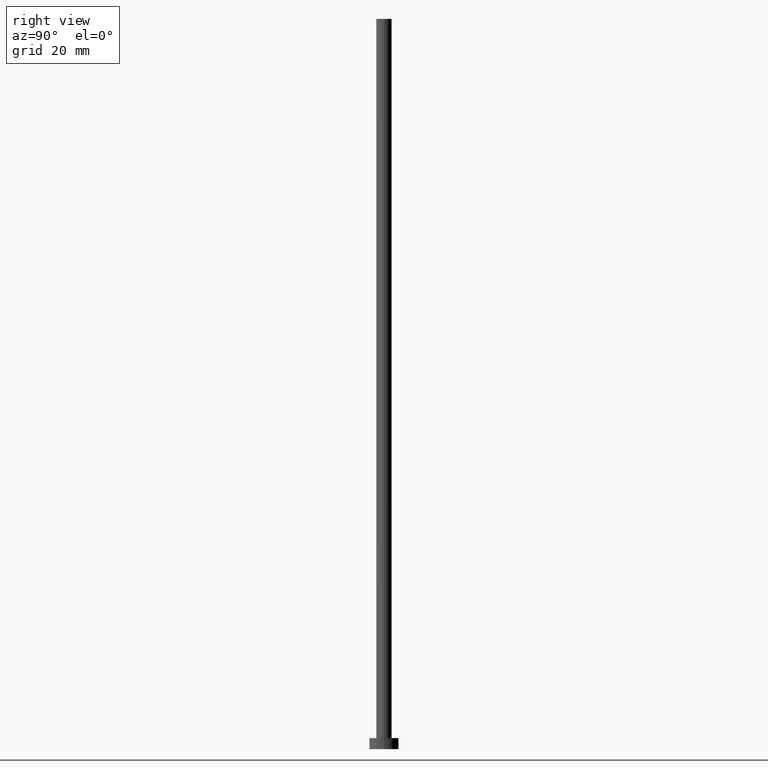
[diagram: clean part render]
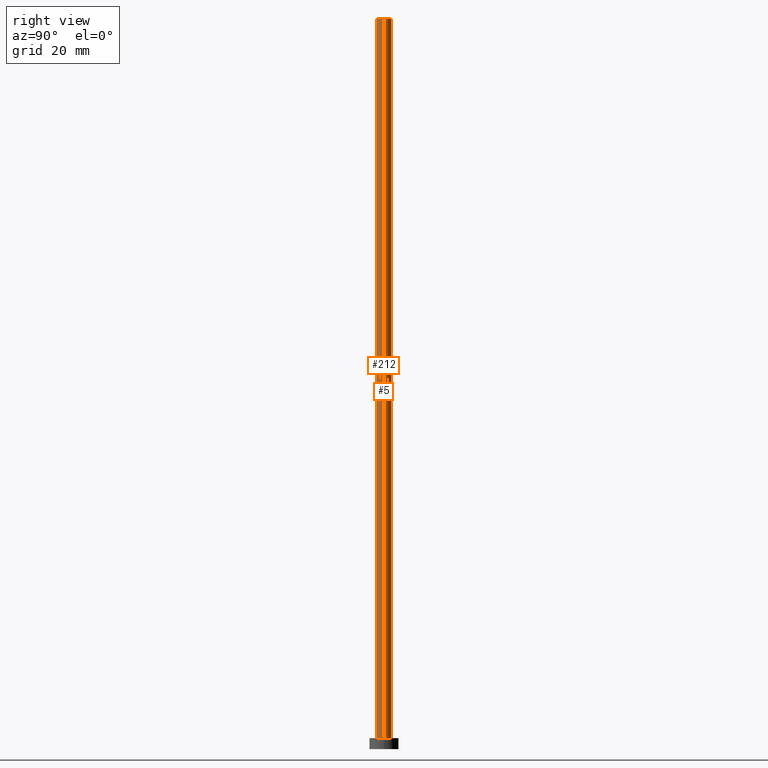
[diagram: same view with one multi-face feature highlighted, each face labeled with its STEP entity id]
A machine part, right view. The highlighted faces form ONE feature: a constant-radius fillet chain: 2 tangent blend faces with common blend radius 2.1 mm. The faces share edges in the B-rep.
Their STEP definitions:
[1] entity #5 (Cylinder):
#5 = ADVANCED_FACE ( 'NONE', ( #133 ), #61, .T. ) ;
#8 = DIRECTION ( 'NONE',  ( 0.000000000000000000, 0.000000000000000000, 1.000000000000000000 ) ) ;
#14 = EDGE_CURVE ( 'NONE', #70, #210, #127, .T. ) ;
#15 = AXIS2_PLACEMENT_3D ( 'NONE', #16, #176, #145 ) ;
#16 = CARTESIAN_POINT ( 'NONE',  ( 0.000000000000000000, 0.000000000000000000, 200.0000000000000000 ) ) ;
#20 = DIRECTION ( 'NONE',  ( -0.000000000000000000, -0.000000000000000000, -1.000000000000000000 ) ) ;
#23 = CARTESIAN_POINT ( 'NONE',  ( 2.100000000000000089, 2.571758278209441957E-16, 3.000000000000000000 ) ) ;
#25 = DIRECTION ( 'NONE',  ( -0.000000000000000000, -0.000000000000000000, -1.000000000000000000 ) ) ;
#26 = VECTOR ( 'NONE', #25, 1000.000000000000000 ) ;
#40 = ORIENTED_EDGE ( 'NONE', *, *, #95, .T. ) ;
#61 = CYLINDRICAL_SURFACE ( 'NONE', #203, 2.100000000000000089 ) ;
#63 = VERTEX_POINT ( 'NONE', #23 ) ;
#68 = LINE ( 'NONE', #234, #26 ) ;
#70 = VERTEX_POINT ( 'NONE', #91 ) ;
#84 = CARTESIAN_POINT ( 'NONE',  ( -2.100000000000000089, 0.000000000000000000, 200.0000000000000000 ) ) ;
#91 = CARTESIAN_POINT ( 'NONE',  ( 2.100000000000000089, 2.571758278209441957E-16, 200.0000000000000000 ) ) ;
#95 = EDGE_CURVE ( 'NONE', #70, #63, #68, .T. ) ;
#99 = EDGE_CURVE ( 'NONE', #63, #214, #173, .T. ) ;
#103 = CARTESIAN_POINT ( 'NONE',  ( 0.000000000000000000, 0.000000000000000000, 200.0000000000000000 ) ) ;
#117 = LINE ( 'NONE', #252, #215 ) ;
#119 = ORIENTED_EDGE ( 'NONE', *, *, #220, .F. ) ;
#127 = CIRCLE ( 'NONE', #15, 2.100000000000000089 ) ;
#133 = FACE_OUTER_BOUND ( 'NONE', #188, .T. ) ;
#134 = CARTESIAN_POINT ( 'NONE',  ( -2.100000000000000089, 0.000000000000000000, 3.000000000000000000 ) ) ;
#136 = AXIS2_PLACEMENT_3D ( 'NONE', #148, #8, #223 ) ;
#141 = ORIENTED_EDGE ( 'NONE', *, *, #14, .F. ) ;
#145 = DIRECTION ( 'NONE',  ( 1.000000000000000000, 0.000000000000000000, 0.000000000000000000 ) ) ;
#148 = CARTESIAN_POINT ( 'NONE',  ( 0.000000000000000000, 0.000000000000000000, 3.000000000000000000 ) ) ;
#151 = ORIENTED_EDGE ( 'NONE', *, *, #99, .T. ) ;
#173 = CIRCLE ( 'NONE', #136, 2.100000000000000089 ) ;
#176 = DIRECTION ( 'NONE',  ( 0.000000000000000000, 0.000000000000000000, 1.000000000000000000 ) ) ;
#178 = DIRECTION ( 'NONE',  ( -0.000000000000000000, -0.000000000000000000, -1.000000000000000000 ) ) ;
#188 = EDGE_LOOP ( 'NONE', ( #141, #40, #151, #119 ) ) ;
#202 = DIRECTION ( 'NONE',  ( -1.000000000000000000, 0.000000000000000000, 0.000000000000000000 ) ) ;
#203 = AXIS2_PLACEMENT_3D ( 'NONE', #103, #178, #202 ) ;
#210 = VERTEX_POINT ( 'NONE', #84 ) ;
#214 = VERTEX_POINT ( 'NONE', #134 ) ;
#215 = VECTOR ( 'NONE', #20, 1000.000000000000000 ) ;
#220 = EDGE_CURVE ( 'NONE', #210, #214, #117, .T. ) ;
#223 = DIRECTION ( 'NONE',  ( 1.000000000000000000, 0.000000000000000000, 0.000000000000000000 ) ) ;
#234 = CARTESIAN_POINT ( 'NONE',  ( 2.100000000000000089, 2.571758278209441957E-16, 200.0000000000000000 ) ) ;
#252 = CARTESIAN_POINT ( 'NONE',  ( -2.100000000000000089, 0.000000000000000000, 200.0000000000000000 ) ) ;
[2] entity #212 (Cylinder):
#9 = CARTESIAN_POINT ( 'NONE',  ( 0.000000000000000000, 0.000000000000000000, 200.0000000000000000 ) ) ;
#20 = DIRECTION ( 'NONE',  ( -0.000000000000000000, -0.000000000000000000, -1.000000000000000000 ) ) ;
#23 = CARTESIAN_POINT ( 'NONE',  ( 2.100000000000000089, 2.571758278209441957E-16, 3.000000000000000000 ) ) ;
#25 = DIRECTION ( 'NONE',  ( -0.000000000000000000, -0.000000000000000000, -1.000000000000000000 ) ) ;
#26 = VECTOR ( 'NONE', #25, 1000.000000000000000 ) ;
#35 = EDGE_CURVE ( 'NONE', #210, #70, #85, .T. ) ;
#37 = DIRECTION ( 'NONE',  ( 1.000000000000000000, 0.000000000000000000, 0.000000000000000000 ) ) ;
#56 = EDGE_CURVE ( 'NONE', #214, #63, #62, .T. ) ;
#62 = CIRCLE ( 'NONE', #94, 2.100000000000000089 ) ;
#63 = VERTEX_POINT ( 'NONE', #23 ) ;
#68 = LINE ( 'NONE', #234, #26 ) ;
#70 = VERTEX_POINT ( 'NONE', #91 ) ;
#71 = ORIENTED_EDGE ( 'NONE', *, *, #220, .T. ) ;
#82 = AXIS2_PLACEMENT_3D ( 'NONE', #90, #255, #189 ) ;
#84 = CARTESIAN_POINT ( 'NONE',  ( -2.100000000000000089, 0.000000000000000000, 200.0000000000000000 ) ) ;
#85 = CIRCLE ( 'NONE', #217, 2.100000000000000089 ) ;
#89 = CARTESIAN_POINT ( 'NONE',  ( 0.000000000000000000, 0.000000000000000000, 3.000000000000000000 ) ) ;
#90 = CARTESIAN_POINT ( 'NONE',  ( 0.000000000000000000, 0.000000000000000000, 200.0000000000000000 ) ) ;
#91 = CARTESIAN_POINT ( 'NONE',  ( 2.100000000000000089, 2.571758278209441957E-16, 200.0000000000000000 ) ) ;
#94 = AXIS2_PLACEMENT_3D ( 'NONE', #89, #149, #37 ) ;
#95 = EDGE_CURVE ( 'NONE', #70, #63, #68, .T. ) ;
#110 = ORIENTED_EDGE ( 'NONE', *, *, #35, .F. ) ;
#117 = LINE ( 'NONE', #252, #215 ) ;
#134 = CARTESIAN_POINT ( 'NONE',  ( -2.100000000000000089, 0.000000000000000000, 3.000000000000000000 ) ) ;
#143 = DIRECTION ( 'NONE',  ( 1.000000000000000000, 0.000000000000000000, 0.000000000000000000 ) ) ;
#149 = DIRECTION ( 'NONE',  ( 0.000000000000000000, 0.000000000000000000, 1.000000000000000000 ) ) ;
#150 = FACE_OUTER_BOUND ( 'NONE', #205, .T. ) ;
#157 = DIRECTION ( 'NONE',  ( 0.000000000000000000, 0.000000000000000000, 1.000000000000000000 ) ) ;
#180 = ORIENTED_EDGE ( 'NONE', *, *, #95, .F. ) ;
#189 = DIRECTION ( 'NONE',  ( -1.000000000000000000, 0.000000000000000000, 0.000000000000000000 ) ) ;
#205 = EDGE_LOOP ( 'NONE', ( #180, #110, #71, #237 ) ) ;
#210 = VERTEX_POINT ( 'NONE', #84 ) ;
#212 = ADVANCED_FACE ( 'NONE', ( #150 ), #231, .T. ) ;
#214 = VERTEX_POINT ( 'NONE', #134 ) ;
#215 = VECTOR ( 'NONE', #20, 1000.000000000000000 ) ;
#217 = AXIS2_PLACEMENT_3D ( 'NONE', #9, #157, #143 ) ;
#220 = EDGE_CURVE ( 'NONE', #210, #214, #117, .T. ) ;
#231 = CYLINDRICAL_SURFACE ( 'NONE', #82, 2.100000000000000089 ) ;
#234 = CARTESIAN_POINT ( 'NONE',  ( 2.100000000000000089, 2.571758278209441957E-16, 200.0000000000000000 ) ) ;
#237 = ORIENTED_EDGE ( 'NONE', *, *, #56, .T. ) ;
#252 = CARTESIAN_POINT ( 'NONE',  ( -2.100000000000000089, 0.000000000000000000, 200.0000000000000000 ) ) ;
#255 = DIRECTION ( 'NONE',  ( -0.000000000000000000, -0.000000000000000000, -1.000000000000000000 ) ) ;